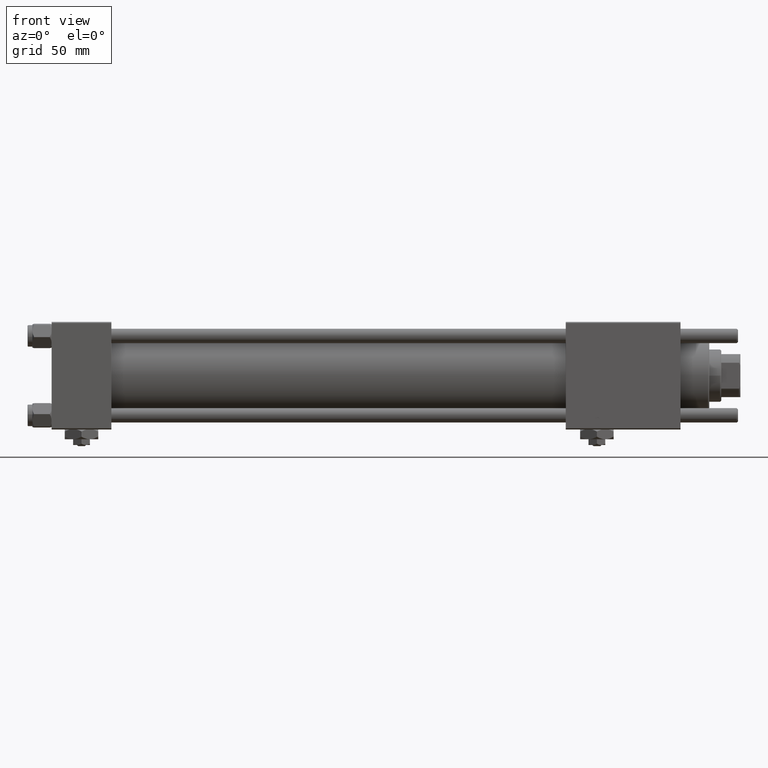
[diagram: clean part render]
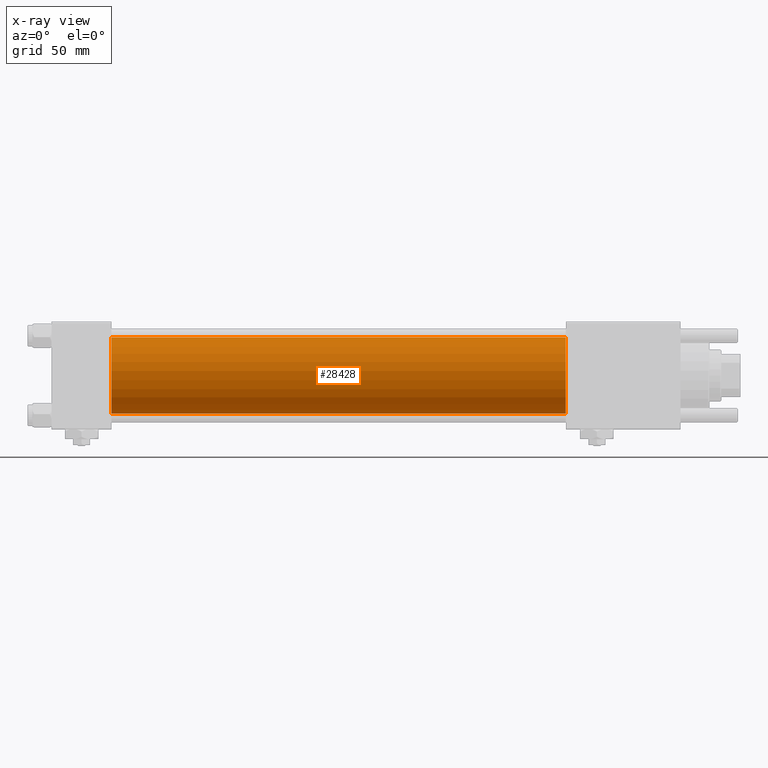
[diagram: x-ray — body ghosted, one internal face saturated and labeled with its STEP entity id]
A machine part, front view, then the same camera in x-ray: the body is ghosted and one INTERNAL B-rep face — a face not visible from any outside direction — is saturated and labeled: STEP entity #28428.
In plain terms, the highlighted cylindrical surface (partial cylindrical patch) has radius 16 mm, axis along (-1, -0, -0).
Its self-contained STEP definition (entity closure, byte-faithful):
#2432 = DIRECTION ( 'NONE',  ( -1.000000000000000000, -0.000000000000000000, -0.000000000000000000 ) ) ;
#2841 = ORIENTED_EDGE ( 'NONE', *, *, #4710, .T. ) ;
#3955 = CARTESIAN_POINT ( 'NONE',  ( 215.0000000000000000, -6.426503353294456087E-16, -16.00000000000000000 ) ) ;
#4146 = VERTEX_POINT ( 'NONE', #44266 ) ;
#4607 = CARTESIAN_POINT ( 'NONE',  ( 25.00000000000000000, -2.602085213965210642E-15, 16.00000000000000000 ) ) ;
#4710 = EDGE_CURVE ( 'NONE', #8882, #4146, #48871, .T. ) ;
#6505 = CARTESIAN_POINT ( 'NONE',  ( 215.0000000000000000, -6.426503353294456087E-16, -16.00000000000000000 ) ) ;
#6914 = DIRECTION ( 'NONE',  ( 0.000000000000000000, 0.000000000000000000, 1.000000000000000000 ) ) ;
#7534 = DIRECTION ( 'NONE',  ( -1.000000000000000000, -0.000000000000000000, -0.000000000000000000 ) ) ;
#8511 = AXIS2_PLACEMENT_3D ( 'NONE', #33200, #42708, #15064 ) ;
#8882 = VERTEX_POINT ( 'NONE', #6505 ) ;
#9511 = VECTOR ( 'NONE', #7534, 1000.000000000000000 ) ;
#14984 = CYLINDRICAL_SURFACE ( 'NONE', #27162, 16.00000000000000000 ) ;
#15064 = DIRECTION ( 'NONE',  ( 0.000000000000000000, 0.000000000000000000, -1.000000000000000000 ) ) ;
#15194 = CIRCLE ( 'NONE', #8511, 16.00000000000000000 ) ;
#19356 = VERTEX_POINT ( 'NONE', #4607 ) ;
#19592 = CARTESIAN_POINT ( 'NONE',  ( 215.0000000000000000, -2.602085213965210642E-15, 16.00000000000000000 ) ) ;
#22533 = AXIS2_PLACEMENT_3D ( 'NONE', #36584, #32121, #50218 ) ;
#27162 = AXIS2_PLACEMENT_3D ( 'NONE', #38476, #2432, #6914 ) ;
#28428 = ADVANCED_FACE ( 'NONE', ( #47069 ), #14984, .F. ) ;
#28481 = ORIENTED_EDGE ( 'NONE', *, *, #44166, .T. ) ;
#29212 = CIRCLE ( 'NONE', #22533, 16.00000000000000000 ) ;
#29817 = EDGE_CURVE ( 'NONE', #19356, #4146, #29212, .T. ) ;
#31162 = CARTESIAN_POINT ( 'NONE',  ( 215.0000000000000000, -2.602085213965210642E-15, 16.00000000000000000 ) ) ;
#32003 = VERTEX_POINT ( 'NONE', #19592 ) ;
#32121 = DIRECTION ( 'NONE',  ( 1.000000000000000000, 0.000000000000000000, 0.000000000000000000 ) ) ;
#32853 = EDGE_CURVE ( 'NONE', #32003, #19356, #35628, .T. ) ;
#33200 = CARTESIAN_POINT ( 'NONE',  ( 215.0000000000000000, -2.602085213965210642E-15, 0.000000000000000000 ) ) ;
#35628 = LINE ( 'NONE', #31162, #55752 ) ;
#36584 = CARTESIAN_POINT ( 'NONE',  ( 25.00000000000000000, -2.602085213965210642E-15, 0.000000000000000000 ) ) ;
#37960 = EDGE_LOOP ( 'NONE', ( #28481, #2841, #41226, #44517 ) ) ;
#38476 = CARTESIAN_POINT ( 'NONE',  ( 215.0000000000000000, -2.602085213965210642E-15, 0.000000000000000000 ) ) ;
#41226 = ORIENTED_EDGE ( 'NONE', *, *, #29817, .F. ) ;
#42708 = DIRECTION ( 'NONE',  ( 1.000000000000000000, 0.000000000000000000, 0.000000000000000000 ) ) ;
#44166 = EDGE_CURVE ( 'NONE', #32003, #8882, #15194, .T. ) ;
#44266 = CARTESIAN_POINT ( 'NONE',  ( 25.00000000000000000, -6.426503353294456087E-16, -16.00000000000000000 ) ) ;
#44517 = ORIENTED_EDGE ( 'NONE', *, *, #32853, .F. ) ;
#47069 = FACE_OUTER_BOUND ( 'NONE', #37960, .T. ) ;
#48871 = LINE ( 'NONE', #3955, #9511 ) ;
#50218 = DIRECTION ( 'NONE',  ( 0.000000000000000000, 0.000000000000000000, -1.000000000000000000 ) ) ;
#55752 = VECTOR ( 'NONE', #57892, 1000.000000000000000 ) ;
#57892 = DIRECTION ( 'NONE',  ( -1.000000000000000000, -0.000000000000000000, -0.000000000000000000 ) ) ;